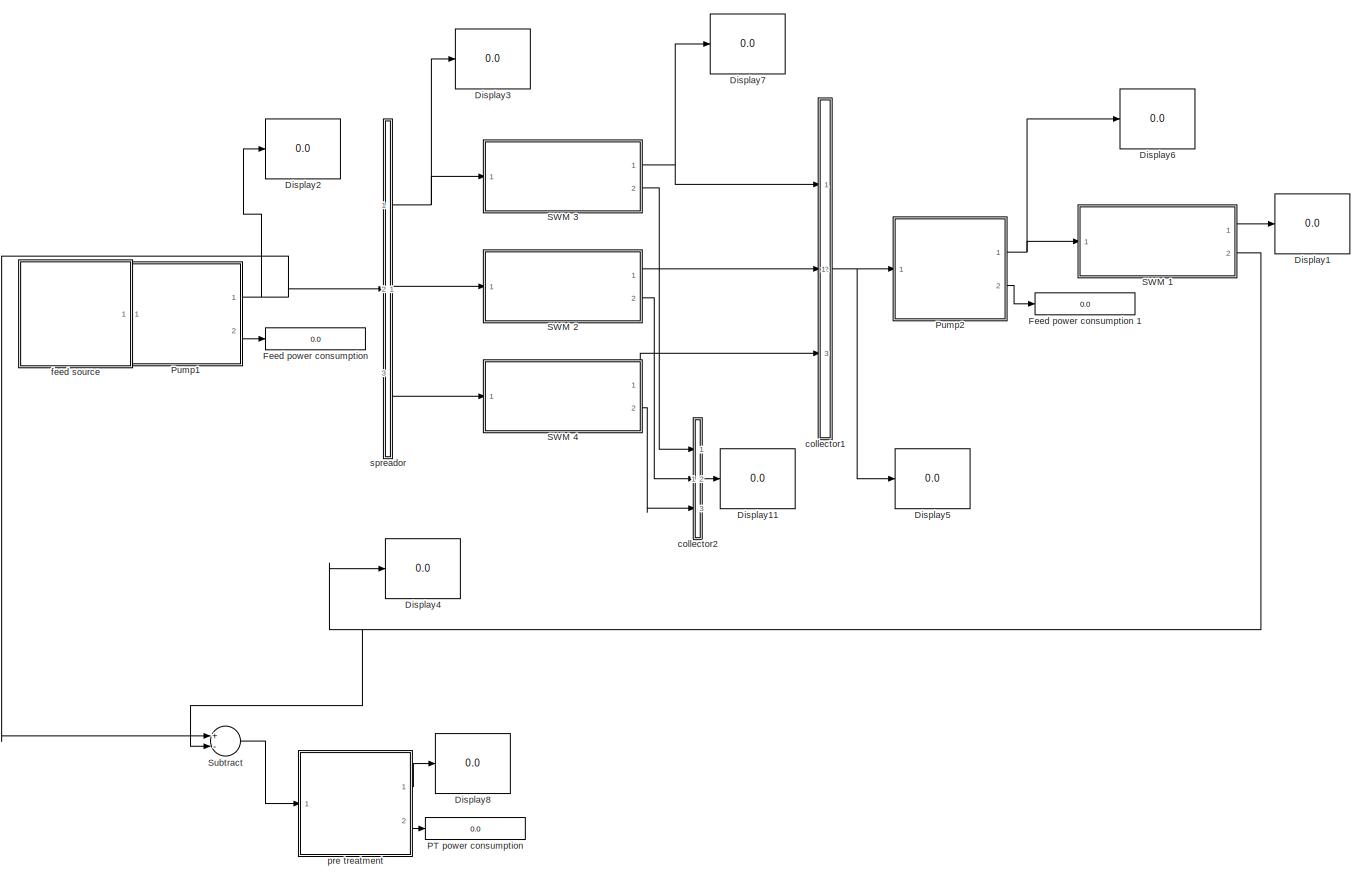
[diagram: root canvas - part 1/1, most of the canvas]
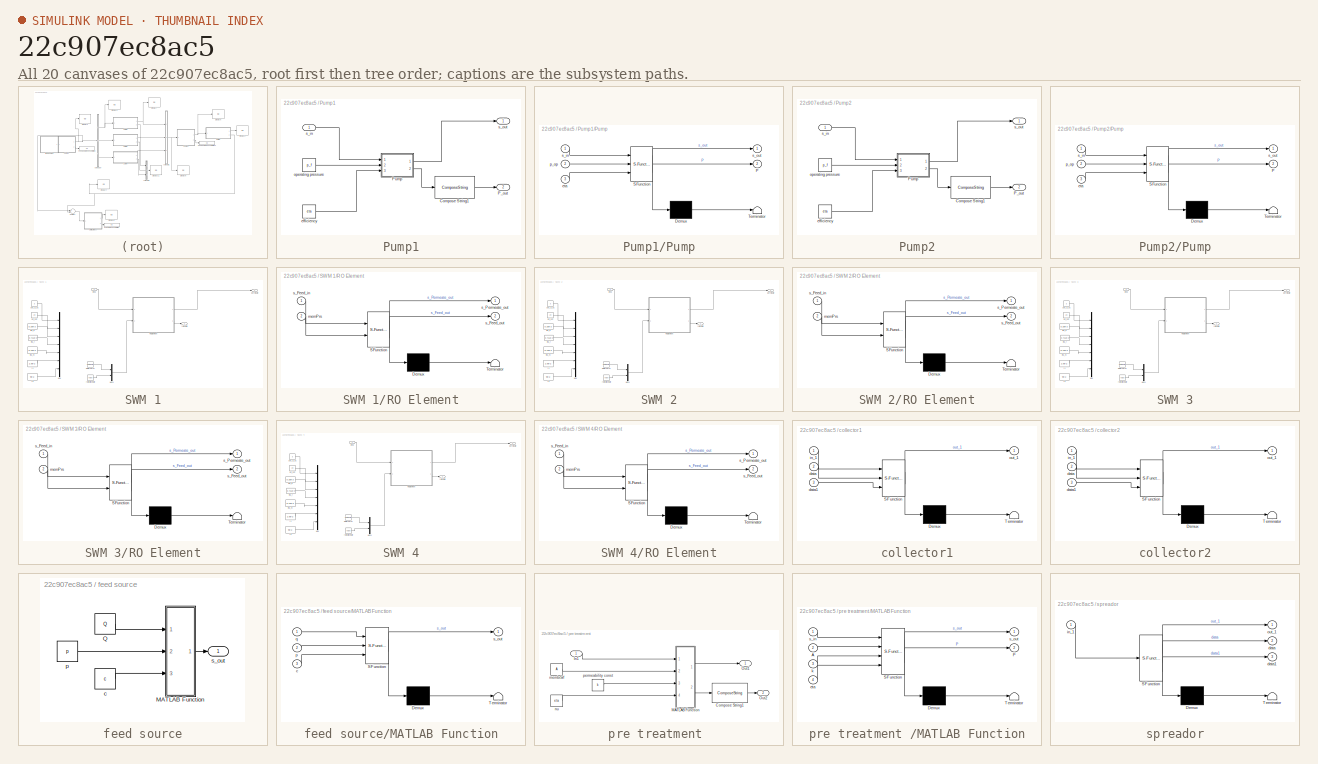
[diagram: thumbnail index - all 20 canvases of the model, root first then tree order]
MODEL slx_22c907ec8ac5
KIND model
CONFIG AbsTol = auto
CONFIG EnableMultiTasking = off
CONFIG FixedStep = auto
CONFIG MaxStep = auto
CONFIG MinStep = auto
CONFIG RelTol = 1e-3
CONFIG SampleTimeConstraint = Unconstrained
CONFIG Solver = VariableStepAuto
CONFIG SolverName = VariableStepAuto
CONFIG StartTime = 0.0
CONFIG StopTime = 10.0
BLOCK [Display] Display1
  Decimation = 1
  Ports = [1]
BLOCK [Display] Display11
  Decimation = 1
  Ports = [1]
BLOCK [Display] Display2
  Decimation = 1
  Ports = [1]
BLOCK [Display] Display3
  Decimation = 1
  Ports = [1]
BLOCK [Display] Display4
  Decimation = 1
  Ports = [1]
BLOCK [Display] Display5
  Decimation = 1
  Ports = [1]
BLOCK [Display] Display6
  Decimation = 1
  Ports = [1]
BLOCK [Display] Display7
  Decimation = 1
  Ports = [1]
BLOCK [Display] Display8
  Decimation = 1
  Ports = [1]
BLOCK [Display] Feed power consumption 
  Decimation = 1
  Ports = [1]
BLOCK [Display] Feed power consumption 1
  Decimation = 1
  Ports = [1]
BLOCK [Display] PT power consumption 
  Decimation = 1
  Ports = [1]
BLOCK [SubSystem] Pump1
  Ports = [1, 2]
  RequestExecContextInheritance = off
BLOCK [ComposeString] Pump1/Compose String1
  Format = 'P = %.3f kW'
  Ports = [1, 1]
BLOCK [Outport] Pump1/P_out
  IconDisplay = Port number
  Port = 2
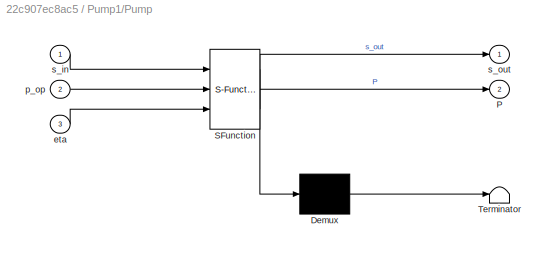
BLOCK [SubSystem] Pump1/Pump
  ErrorFcn = Stateflow.Translate.translate
  PermitHierarchicalResolution = ExplicitOnly
  Ports = [3, 2]
  RequestExecContextInheritance = off
  SFBlockType = MATLAB Function
  TreatAsAtomicUnit = on
BLOCK [Demux] Pump1/Pump/ Demux 
  Outputs = 1
  Ports = [1, 1]
BLOCK [S-Function] Pump1/Pump/ SFunction 
  EnableBusSupport = on
  FunctionName = sf_sfun
  PortCounts = [3 3]
  Ports = [3, 3]
  SFcnIsStateOwnerBlock = off
  SFunctionDeploymentMode = off
  Tag = Stateflow S-Function brine_3_1 3
BLOCK [Terminator] Pump1/Pump/ Terminator 
BLOCK [Outport] Pump1/Pump/P
  IconDisplay = Port number
  Port = 2
BLOCK [Inport] Pump1/Pump/eta
  IconDisplay = Port number
  Port = 3
BLOCK [Inport] Pump1/Pump/p_op
  IconDisplay = Port number
  Port = 2
BLOCK [Inport] Pump1/Pump/s_in
  IconDisplay = Port number
BLOCK [Outport] Pump1/Pump/s_out
  IconDisplay = Port number
BLOCK [Constant] Pump1/efficiency
  Value = eta
BLOCK [Constant] Pump1/operating pressure 
  Value = p_f
BLOCK [Inport] Pump1/s_in 
  IconDisplay = Port number
BLOCK [Outport] Pump1/s_out
  IconDisplay = Port number
BLOCK [SubSystem] Pump2
  Ports = [1, 2]
  RequestExecContextInheritance = off
BLOCK [ComposeString] Pump2/Compose String1
  Format = 'P = %.3f kW'
  Ports = [1, 1]
BLOCK [Outport] Pump2/P_out
  IconDisplay = Port number
  Port = 2
BLOCK [SubSystem] Pump2/Pump
  ErrorFcn = Stateflow.Translate.translate
  PermitHierarchicalResolution = ExplicitOnly
  Ports = [3, 2]
  RequestExecContextInheritance = off
  SFBlockType = MATLAB Function
  TreatAsAtomicUnit = on
BLOCK [Demux] Pump2/Pump/ Demux 
  Outputs = 1
  Ports = [1, 1]
BLOCK [S-Function] Pump2/Pump/ SFunction 
  EnableBusSupport = on
  FunctionName = sf_sfun
  PortCounts = [3 3]
  Ports = [3, 3]
  SFcnIsStateOwnerBlock = off
  SFunctionDeploymentMode = off
  Tag = Stateflow S-Function brine_3_1 2
BLOCK [Terminator] Pump2/Pump/ Terminator 
BLOCK [Outport] Pump2/Pump/P
  IconDisplay = Port number
  Port = 2
BLOCK [Inport] Pump2/Pump/eta
  IconDisplay = Port number
  Port = 3
BLOCK [Inport] Pump2/Pump/p_op
  IconDisplay = Port number
  Port = 2
BLOCK [Inport] Pump2/Pump/s_in
  IconDisplay = Port number
BLOCK [Outport] Pump2/Pump/s_out
  IconDisplay = Port number
BLOCK [Constant] Pump2/efficiency
  Value = eta
BLOCK [Constant] Pump2/operating pressure 
  Value = p_f
BLOCK [Inport] Pump2/s_in 
  IconDisplay = Port number
BLOCK [Outport] Pump2/s_out
  IconDisplay = Port number
BLOCK [SubSystem] SWM 1
  Ports = [1, 2]
  RequestExecContextInheritance = off
BLOCK [Mux] SWM 1/Mux
  Commented = on
  DisplayOption = bar
  Inputs = 7
  Ports = [7, 1]
BLOCK [Mux] SWM 1/Mux1
  DisplayOption = bar
  Inputs = 2
  Ports = [2, 1]
BLOCK [SubSystem] SWM 1/RO Element
  ErrorFcn = Stateflow.Translate.translate
  PermitHierarchicalResolution = ExplicitOnly
  Ports = [2, 2]
  RequestExecContextInheritance = off
  SFBlockType = MATLAB Function
  TreatAsAtomicUnit = on
BLOCK [Demux] SWM 1/RO Element/ Demux 
  Outputs = 1
  Ports = [1, 1]
BLOCK [S-Function] SWM 1/RO Element/ SFunction 
  EnableBusSupport = on
  FunctionName = sf_sfun
  PortCounts = [2 3]
  Ports = [2, 3]
  SFcnIsStateOwnerBlock = off
  SFunctionDeploymentMode = off
  Tag = Stateflow S-Function brine_3_1 1
BLOCK [Terminator] SWM 1/RO Element/ Terminator 
BLOCK [Inport] SWM 1/RO Element/memPrs
  IconDisplay = Port number
  Port = 2
BLOCK [Inport] SWM 1/RO Element/s_Feed_in
  IconDisplay = Port number
BLOCK [Outport] SWM 1/RO Element/s_Feed_out
  IconDisplay = Port number
  Port = 2
BLOCK [Outport] SWM 1/RO Element/s_Permeate_out
  IconDisplay = Port number
BLOCK [Inport] SWM 1/feed
  IconDisplay = Port number
BLOCK [Constant] SWM 1/np_sht
  Commented = on
  Value = 20
BLOCK [Outport] SWM 1/permeate
  IconDisplay = Port number
BLOCK [Constant] SWM 1/r1
  Commented = on
  Value = 2.5e-2
BLOCK [Constant] SWM 1/r2
  Commented = on
  Value = 9e-2
BLOCK [Constant] SWM 1/rejectionRate
  Value = Value
BLOCK [Outport] SWM 1/retentate
  IconDisplay = Port number
  Port = 2
BLOCK [Constant] SWM 1/spc_d_uc
  Commented = on
  Value = 3
BLOCK [Constant] SWM 1/thk_f
  Commented = on
  Value = 0.711e-3
BLOCK [Constant] SWM 1/thk_m
  Commented = on
  Value = 0.11e-3
BLOCK [Constant] SWM 1/thk_p
  Commented = on
  Value = 0.25e-3
BLOCK [Constant] SWM 1/waterPerm
  Value = waterPerm
BLOCK [SubSystem] SWM 2
  Ports = [1, 2]
  RequestExecContextInheritance = off
BLOCK [Mux] SWM 2/Mux
  Commented = on
  DisplayOption = bar
  Inputs = 7
  Ports = [7, 1]
BLOCK [Mux] SWM 2/Mux1
  DisplayOption = bar
  Inputs = 2
  Ports = [2, 1]
BLOCK [SubSystem] SWM 2/RO Element
  ErrorFcn = Stateflow.Translate.translate
  PermitHierarchicalResolution = ExplicitOnly
  Ports = [2, 2]
  RequestExecContextInheritance = off
  SFBlockType = MATLAB Function
  TreatAsAtomicUnit = on
BLOCK [Demux] SWM 2/RO Element/ Demux 
  Outputs = 1
  Ports = [1, 1]
BLOCK [S-Function] SWM 2/RO Element/ SFunction 
  EnableBusSupport = on
  FunctionName = sf_sfun
  PortCounts = [2 3]
  Ports = [2, 3]
  SFcnIsStateOwnerBlock = off
  SFunctionDeploymentMode = off
  Tag = Stateflow S-Function brine_3_1 8
BLOCK [Terminator] SWM 2/RO Element/ Terminator 
BLOCK [Inport] SWM 2/RO Element/memPrs
  IconDisplay = Port number
  Port = 2
BLOCK [Inport] SWM 2/RO Element/s_Feed_in
  IconDisplay = Port number
BLOCK [Outport] SWM 2/RO Element/s_Feed_out
  IconDisplay = Port number
  Port = 2
BLOCK [Outport] SWM 2/RO Element/s_Permeate_out
  IconDisplay = Port number
BLOCK [Inport] SWM 2/feed
  IconDisplay = Port number
BLOCK [Constant] SWM 2/np_sht
  Commented = on
  Value = 20
BLOCK [Outport] SWM 2/permeate
  IconDisplay = Port number
BLOCK [Constant] SWM 2/r1
  Commented = on
  Value = 2.5e-2
BLOCK [Constant] SWM 2/r2
  Commented = on
  Value = 9e-2
BLOCK [Constant] SWM 2/rejectionRate
  Value = Value
BLOCK [Outport] SWM 2/retentate
  IconDisplay = Port number
  Port = 2
BLOCK [Constant] SWM 2/spc_d_uc
  Commented = on
  Value = 3
BLOCK [Constant] SWM 2/thk_f
  Commented = on
  Value = 0.711e-3
BLOCK [Constant] SWM 2/thk_m
  Commented = on
  Value = 0.11e-3
BLOCK [Constant] SWM 2/thk_p
  Commented = on
  Value = 0.25e-3
BLOCK [Constant] SWM 2/waterPerm
  Value = waterPerm
BLOCK [SubSystem] SWM 3
  Ports = [1, 2]
  RequestExecContextInheritance = off
BLOCK [Mux] SWM 3/Mux
  Commented = on
  DisplayOption = bar
  Inputs = 7
  Ports = [7, 1]
BLOCK [Mux] SWM 3/Mux1
  DisplayOption = bar
  Inputs = 2
  Ports = [2, 1]
BLOCK [SubSystem] SWM 3/RO Element
  ErrorFcn = Stateflow.Translate.translate
  PermitHierarchicalResolution = ExplicitOnly
  Ports = [2, 2]
  RequestExecContextInheritance = off
  SFBlockType = MATLAB Function
  TreatAsAtomicUnit = on
BLOCK [Demux] SWM 3/RO Element/ Demux 
  Outputs = 1
  Ports = [1, 1]
BLOCK [S-Function] SWM 3/RO Element/ SFunction 
  EnableBusSupport = on
  FunctionName = sf_sfun
  PortCounts = [2 3]
  Ports = [2, 3]
  SFcnIsStateOwnerBlock = off
  SFunctionDeploymentMode = off
  Tag = Stateflow S-Function brine_3_1 4
BLOCK [Terminator] SWM 3/RO Element/ Terminator 
BLOCK [Inport] SWM 3/RO Element/memPrs
  IconDisplay = Port number
  Port = 2
BLOCK [Inport] SWM 3/RO Element/s_Feed_in
  IconDisplay = Port number
BLOCK [Outport] SWM 3/RO Element/s_Feed_out
  IconDisplay = Port number
  Port = 2
BLOCK [Outport] SWM 3/RO Element/s_Permeate_out
  IconDisplay = Port number
BLOCK [Inport] SWM 3/feed
  IconDisplay = Port number
BLOCK [Constant] SWM 3/np_sht
  Commented = on
  Value = 20
BLOCK [Outport] SWM 3/permeate
  IconDisplay = Port number
BLOCK [Constant] SWM 3/r1
  Commented = on
  Value = 2.5e-2
BLOCK [Constant] SWM 3/r2
  Commented = on
  Value = 9e-2
BLOCK [Constant] SWM 3/rejectionRate
  Value = Value
BLOCK [Outport] SWM 3/retentate
  IconDisplay = Port number
  Port = 2
BLOCK [Constant] SWM 3/spc_d_uc
  Commented = on
  Value = 3
BLOCK [Constant] SWM 3/thk_f
  Commented = on
  Value = 0.711e-3
BLOCK [Constant] SWM 3/thk_m
  Commented = on
  Value = 0.11e-3
BLOCK [Constant] SWM 3/thk_p
  Commented = on
  Value = 0.25e-3
BLOCK [Constant] SWM 3/waterPerm
  Value = waterPerm
BLOCK [SubSystem] SWM 4
  Ports = [1, 2]
  RequestExecContextInheritance = off
BLOCK [Mux] SWM 4/Mux
  Commented = on
  DisplayOption = bar
  Inputs = 7
  Ports = [7, 1]
BLOCK [Mux] SWM 4/Mux1
  DisplayOption = bar
  Inputs = 2
  Ports = [2, 1]
BLOCK [SubSystem] SWM 4/RO Element
  ErrorFcn = Stateflow.Translate.translate
  PermitHierarchicalResolution = ExplicitOnly
  Ports = [2, 2]
  RequestExecContextInheritance = off
  SFBlockType = MATLAB Function
  TreatAsAtomicUnit = on
BLOCK [Demux] SWM 4/RO Element/ Demux 
  Outputs = 1
  Ports = [1, 1]
BLOCK [S-Function] SWM 4/RO Element/ SFunction 
  EnableBusSupport = on
  FunctionName = sf_sfun
  PortCounts = [2 3]
  Ports = [2, 3]
  SFcnIsStateOwnerBlock = off
  SFunctionDeploymentMode = off
  Tag = Stateflow S-Function brine_3_1 9
BLOCK [Terminator] SWM 4/RO Element/ Terminator 
BLOCK [Inport] SWM 4/RO Element/memPrs
  IconDisplay = Port number
  Port = 2
BLOCK [Inport] SWM 4/RO Element/s_Feed_in
  IconDisplay = Port number
BLOCK [Outport] SWM 4/RO Element/s_Feed_out
  IconDisplay = Port number
  Port = 2
BLOCK [Outport] SWM 4/RO Element/s_Permeate_out
  IconDisplay = Port number
BLOCK [Inport] SWM 4/feed
  IconDisplay = Port number
BLOCK [Constant] SWM 4/np_sht
  Commented = on
  Value = 20
BLOCK [Outport] SWM 4/permeate
  IconDisplay = Port number
BLOCK [Constant] SWM 4/r1
  Commented = on
  Value = 2.5e-2
BLOCK [Constant] SWM 4/r2
  Commented = on
  Value = 9e-2
BLOCK [Constant] SWM 4/rejectionRate
  Value = Value
BLOCK [Outport] SWM 4/retentate
  IconDisplay = Port number
  Port = 2
BLOCK [Constant] SWM 4/spc_d_uc
  Commented = on
  Value = 3
BLOCK [Constant] SWM 4/thk_f
  Commented = on
  Value = 0.711e-3
BLOCK [Constant] SWM 4/thk_m
  Commented = on
  Value = 0.11e-3
BLOCK [Constant] SWM 4/thk_p
  Commented = on
  Value = 0.25e-3
BLOCK [Constant] SWM 4/waterPerm
  Value = waterPerm
BLOCK [Sum] Subtract
  InputSameDT = off
  Inputs = +-
  OutDataTypeStr = Inherit: Inherit via internal rule
  Ports = [2, 1]
  SaturateOnIntegerOverflow = off
BLOCK [SubSystem] collector1
  ErrorFcn = Stateflow.Translate.translate
  PermitHierarchicalResolution = ExplicitOnly
  Ports = [3, 1]
  RequestExecContextInheritance = off
  SFBlockType = MATLAB Function
  TreatAsAtomicUnit = on
BLOCK [Demux] collector1/ Demux 
  Outputs = 1
  Ports = [1, 1]
BLOCK [S-Function] collector1/ SFunction 
  EnableBusSupport = on
  FunctionName = sf_sfun
  PortCounts = [3 2]
  Ports = [3, 2]
  SFcnIsStateOwnerBlock = off
  SFunctionDeploymentMode = off
  Tag = Stateflow S-Function brine_3_1 10
BLOCK [Terminator] collector1/ Terminator 
BLOCK [Inport] collector1/data
  IconDisplay = Port number
  Port = 2
BLOCK [Inport] collector1/data1
  IconDisplay = Port number
  Port = 3
BLOCK [Inport] collector1/in_1
  IconDisplay = Port number
BLOCK [Outport] collector1/out_1
  IconDisplay = Port number
BLOCK [SubSystem] collector2
  ErrorFcn = Stateflow.Translate.translate
  PermitHierarchicalResolution = ExplicitOnly
  Ports = [3, 1]
  RequestExecContextInheritance = off
  SFBlockType = MATLAB Function
  TreatAsAtomicUnit = on
BLOCK [Demux] collector2/ Demux 
  Outputs = 1
  Ports = [1, 1]
BLOCK [S-Function] collector2/ SFunction 
  EnableBusSupport = on
  FunctionName = sf_sfun
  PortCounts = [3 2]
  Ports = [3, 2]
  SFcnIsStateOwnerBlock = off
  SFunctionDeploymentMode = off
  Tag = Stateflow S-Function brine_3_1 11
BLOCK [Terminator] collector2/ Terminator 
BLOCK [Inport] collector2/data
  IconDisplay = Port number
  Port = 2
BLOCK [Inport] collector2/data1
  IconDisplay = Port number
  Port = 3
BLOCK [Inport] collector2/in_1
  IconDisplay = Port number
BLOCK [Outport] collector2/out_1
  IconDisplay = Port number
BLOCK [SubSystem] feed source
  Ports = [0, 1]
  RequestExecContextInheritance = off
BLOCK [SubSystem] feed source/MATLAB Function
  ErrorFcn = Stateflow.Translate.translate
  PermitHierarchicalResolution = ExplicitOnly
  Ports = [3, 1]
  RequestExecContextInheritance = off
  SFBlockType = MATLAB Function
  TreatAsAtomicUnit = on
BLOCK [Demux] feed source/MATLAB Function/ Demux 
  Outputs = 1
  Ports = [1, 1]
BLOCK [S-Function] feed source/MATLAB Function/ SFunction 
  EnableBusSupport = on
  FunctionName = sf_sfun
  PortCounts = [3 2]
  Ports = [3, 2]
  SFcnIsStateOwnerBlock = off
  SFunctionDeploymentMode = off
  Tag = Stateflow S-Function brine_3_1 19
BLOCK [Terminator] feed source/MATLAB Function/ Terminator 
BLOCK [Inport] feed source/MATLAB Function/c
  IconDisplay = Port number
  Port = 3
BLOCK [Inport] feed source/MATLAB Function/p
  IconDisplay = Port number
  Port = 2
BLOCK [Inport] feed source/MATLAB Function/q
  IconDisplay = Port number
BLOCK [Outport] feed source/MATLAB Function/s_out
  IconDisplay = Port number
BLOCK [Constant] feed source/Q
  Value = Q
BLOCK [Constant] feed source/c
  Value = c
BLOCK [Constant] feed source/p
  Value = p
BLOCK [Outport] feed source/s_out
  IconDisplay = Port number
BLOCK [SubSystem] pre treatment 
  Ports = [1, 2]
  RequestExecContextInheritance = off
BLOCK [ComposeString] pre treatment /Compose String1
  Format = 'P = %.3f kW'
  Ports = [1, 1]
BLOCK [Inport] pre treatment /In1
  IconDisplay = Port number
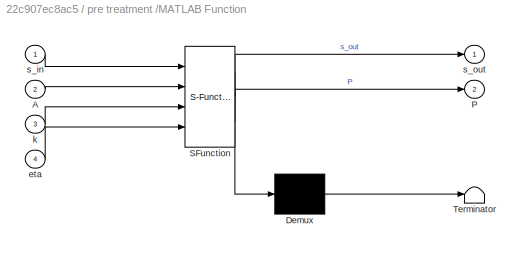
BLOCK [SubSystem] pre treatment /MATLAB Function
  ErrorFcn = Stateflow.Translate.translate
  PermitHierarchicalResolution = ExplicitOnly
  Ports = [4, 2]
  RequestExecContextInheritance = off
  SFBlockType = MATLAB Function
  TreatAsAtomicUnit = on
BLOCK [Demux] pre treatment /MATLAB Function/ Demux 
  Outputs = 1
  Ports = [1, 1]
BLOCK [S-Function] pre treatment /MATLAB Function/ SFunction 
  EnableBusSupport = on
  FunctionName = sf_sfun
  PortCounts = [4 3]
  Ports = [4, 3]
  SFcnIsStateOwnerBlock = off
  SFunctionDeploymentMode = off
  Tag = Stateflow S-Function brine_3_1 20
BLOCK [Terminator] pre treatment /MATLAB Function/ Terminator 
BLOCK [Inport] pre treatment /MATLAB Function/A
  IconDisplay = Port number
  Port = 2
BLOCK [Outport] pre treatment /MATLAB Function/P
  IconDisplay = Port number
  Port = 2
BLOCK [Inport] pre treatment /MATLAB Function/eta
  IconDisplay = Port number
  Port = 4
BLOCK [Inport] pre treatment /MATLAB Function/k
  IconDisplay = Port number
  Port = 3
BLOCK [Inport] pre treatment /MATLAB Function/s_in
  IconDisplay = Port number
BLOCK [Outport] pre treatment /MATLAB Function/s_out
  IconDisplay = Port number
BLOCK [Outport] pre treatment /Out1
  IconDisplay = Port number
BLOCK [Outport] pre treatment /Out2
  IconDisplay = Port number
  Port = 2
BLOCK [Constant] pre treatment /membrSrf
  Value = A
BLOCK [Constant] pre treatment /nu
  Value = eta
BLOCK [Constant] pre treatment /permeability const
  Value = k
BLOCK [SubSystem] spreador
  ErrorFcn = Stateflow.Translate.translate
  PermitHierarchicalResolution = ExplicitOnly
  Ports = [1, 3]
  RequestExecContextInheritance = off
  SFBlockType = MATLAB Function
  TreatAsAtomicUnit = on
BLOCK [Demux] spreador/ Demux 
  Outputs = 1
  Ports = [1, 1]
BLOCK [S-Function] spreador/ SFunction 
  EnableBusSupport = on
  FunctionName = sf_sfun
  PortCounts = [1 4]
  Ports = [1, 4]
  SFcnIsStateOwnerBlock = off
  SFunctionDeploymentMode = off
  Tag = Stateflow S-Function brine_3_1 23
BLOCK [Terminator] spreador/ Terminator 
BLOCK [Outport] spreador/data
  IconDisplay = Port number
  Port = 2
BLOCK [Outport] spreador/data1
  IconDisplay = Port number
  Port = 3
BLOCK [Inport] spreador/in_1
  IconDisplay = Port number
BLOCK [Outport] spreador/out_1
  IconDisplay = Port number
LINE Pump1/Compose String1:1 -> Pump1/P_out:1
LINE Pump1/Pump:1 -> Pump1/s_out:1
LINE Pump1/Pump:2 -> Pump1/Compose String1:1
LINE Pump1/efficiency:1 -> Pump1/Pump:3
LINE Pump1/operating pressure :1 -> Pump1/Pump:2
LINE Pump1/s_in :1 -> Pump1/Pump:1
NET Pump1:1 -> Display2:1, Subtract:1, spreador:1
LINE Pump1:2 -> Feed power consumption :1
LINE Pump2/Compose String1:1 -> Pump2/P_out:1
LINE Pump2/Pump:1 -> Pump2/s_out:1
LINE Pump2/Pump:2 -> Pump2/Compose String1:1
LINE Pump2/efficiency:1 -> Pump2/Pump:3
LINE Pump2/operating pressure :1 -> Pump2/Pump:2
LINE Pump2/s_in :1 -> Pump2/Pump:1
NET Pump2:1 -> Display6:1, SWM 1:1
LINE Pump2:2 -> Feed power consumption 1:1
LINE SWM 1/Mux1:1 -> SWM 1/RO Element:2
LINE SWM 1/RO Element:1 -> SWM 1/permeate:1
LINE SWM 1/RO Element:2 -> SWM 1/retentate:1
LINE SWM 1/feed:1 -> SWM 1/RO Element:1
LINE SWM 1/np_sht:1 -> SWM 1/Mux:2
LINE SWM 1/r1:1 -> SWM 1/Mux:6
LINE SWM 1/r2:1 -> SWM 1/Mux:7
LINE SWM 1/rejectionRate:1 -> SWM 1/Mux1:2
LINE SWM 1/spc_d_uc:1 -> SWM 1/Mux:1
LINE SWM 1/thk_f:1 -> SWM 1/Mux:4
LINE SWM 1/thk_m:1 -> SWM 1/Mux:5
LINE SWM 1/thk_p:1 -> SWM 1/Mux:3
LINE SWM 1/waterPerm:1 -> SWM 1/Mux1:1
LINE SWM 1:1 -> Display1:1
NET SWM 1:2 -> Display4:1, Subtract:2
LINE SWM 2/Mux1:1 -> SWM 2/RO Element:2
LINE SWM 2/RO Element:1 -> SWM 2/permeate:1
LINE SWM 2/RO Element:2 -> SWM 2/retentate:1
LINE SWM 2/feed:1 -> SWM 2/RO Element:1
LINE SWM 2/np_sht:1 -> SWM 2/Mux:2
LINE SWM 2/r1:1 -> SWM 2/Mux:6
LINE SWM 2/r2:1 -> SWM 2/Mux:7
LINE SWM 2/rejectionRate:1 -> SWM 2/Mux1:2
LINE SWM 2/spc_d_uc:1 -> SWM 2/Mux:1
LINE SWM 2/thk_f:1 -> SWM 2/Mux:4
LINE SWM 2/thk_m:1 -> SWM 2/Mux:5
LINE SWM 2/thk_p:1 -> SWM 2/Mux:3
LINE SWM 2/waterPerm:1 -> SWM 2/Mux1:1
LINE SWM 2:1 -> collector1:2
LINE SWM 2:2 -> collector2:2
LINE SWM 3/Mux1:1 -> SWM 3/RO Element:2
LINE SWM 3/RO Element:1 -> SWM 3/permeate:1
LINE SWM 3/RO Element:2 -> SWM 3/retentate:1
LINE SWM 3/feed:1 -> SWM 3/RO Element:1
LINE SWM 3/np_sht:1 -> SWM 3/Mux:2
LINE SWM 3/r1:1 -> SWM 3/Mux:6
LINE SWM 3/r2:1 -> SWM 3/Mux:7
LINE SWM 3/rejectionRate:1 -> SWM 3/Mux1:2
LINE SWM 3/spc_d_uc:1 -> SWM 3/Mux:1
LINE SWM 3/thk_f:1 -> SWM 3/Mux:4
LINE SWM 3/thk_m:1 -> SWM 3/Mux:5
LINE SWM 3/thk_p:1 -> SWM 3/Mux:3
LINE SWM 3/waterPerm:1 -> SWM 3/Mux1:1
NET SWM 3:1 -> Display7:1, collector1:1
LINE SWM 3:2 -> collector2:1
LINE SWM 4/Mux1:1 -> SWM 4/RO Element:2
LINE SWM 4/RO Element:1 -> SWM 4/permeate:1
LINE SWM 4/RO Element:2 -> SWM 4/retentate:1
LINE SWM 4/feed:1 -> SWM 4/RO Element:1
LINE SWM 4/np_sht:1 -> SWM 4/Mux:2
LINE SWM 4/r1:1 -> SWM 4/Mux:6
LINE SWM 4/r2:1 -> SWM 4/Mux:7
LINE SWM 4/rejectionRate:1 -> SWM 4/Mux1:2
LINE SWM 4/spc_d_uc:1 -> SWM 4/Mux:1
LINE SWM 4/thk_f:1 -> SWM 4/Mux:4
LINE SWM 4/thk_m:1 -> SWM 4/Mux:5
LINE SWM 4/thk_p:1 -> SWM 4/Mux:3
LINE SWM 4/waterPerm:1 -> SWM 4/Mux1:1
LINE SWM 4:1 -> collector1:3
LINE SWM 4:2 -> collector2:3
LINE Subtract:1 -> pre treatment :1
NET collector1:1 -> Display5:1, Pump2:1
LINE collector2:1 -> Display11:1
LINE feed source/MATLAB Function:1 -> feed source/s_out:1
LINE feed source/Q:1 -> feed source/MATLAB Function:1
LINE feed source/c:1 -> feed source/MATLAB Function:3
LINE feed source/p:1 -> feed source/MATLAB Function:2
LINE feed source:1 -> Pump1:1
LINE pre treatment /Compose String1:1 -> pre treatment /Out2:1
LINE pre treatment /In1:1 -> pre treatment /MATLAB Function:1
LINE pre treatment /MATLAB Function:1 -> pre treatment /Out1:1
LINE pre treatment /MATLAB Function:2 -> pre treatment /Compose String1:1
LINE pre treatment /membrSrf:1 -> pre treatment /MATLAB Function:2
LINE pre treatment /nu:1 -> pre treatment /MATLAB Function:4
LINE pre treatment /permeability const:1 -> pre treatment /MATLAB Function:3
LINE pre treatment :1 -> Display8:1
LINE pre treatment :2 -> PT power consumption :1
NET spreador:1 -> Display3:1, SWM 3:1
LINE spreador:2 -> SWM 2:1
LINE spreador:3 -> SWM 4:1
note: NET lines group one-source signal fan-out (src -> all destinations, sorted); 1:1 wires keep LINE
CHART SWM 1/RO Element states=1 transitions=1
  STATE_LABEL 'eML_blk_kernel()'
  STATE_LABEL 'SCRIPT:\nfunction [s_Permeate_out, s_Feed_out] = fcn(s_Feed_in, memPrs)\n\n% moduleParas = [d_uc, no_sht, thk_d, thk_f, thk_m, r1, r2]\n\nr_fl    = 2.5e-4;\nh_ch    = 7.11e-4;\nl_f     = 2.822e-3;\neps     = 1.0 - (3.14*r_fl^2*2.0)/(l_f*h_ch);\n\n% ---------------------------------fixing flow rate:\nnbSheets = 20;\nl_s     = 1.1;\nl_l     = 0.93;\n\nq_in    = s_Feed_in(1)/3.6*1e-6;        %m^3/s\nU       = q_in/(...<+2296ch>'  <repeated x4 — deduplicated; at blocks: RO Element>
CHART Pump2/Pump states=1 transitions=1
  STATE_LABEL 'eML_blk_kernel()'
  STATE_LABEL 'SCRIPT:\nfunction [s_out,P ] = fcn(s_in, p_op, eta)\nq = s_in(1);\ndp = p_op - s_in(2);\nP = q*dp/eta/3.6e4;     % power consumption in kW\ns_out = [q,p_op,s_in(3)];\n\n'
CHART Pump1/Pump states=1 transitions=1
  STATE_LABEL 'eML_blk_kernel()'
  STATE_LABEL 'SCRIPT:\nfunction [s_out,P ] = fcn(s_in, p_op, eta)\nq = s_in(1);\ndp = p_op - s_in(2);\nP = q*dp/eta/3.6e4;     % power consumption in kW\ns_out = [q,p_op,s_in(3)];\n\n'
CHART SWM 3/RO Element states=1 transitions=1
  STATE_LABEL 'eML_blk_kernel()'
CHART SWM 2/RO Element states=1 transitions=1
  STATE_LABEL 'eML_blk_kernel()'
CHART SWM 4/RO Element states=1 transitions=1
  STATE_LABEL 'eML_blk_kernel()'
CHART collector1 states=1 transitions=1
  STATE_LABEL 'eML_blk_kernel()'
  STATE_LABEL 'SCRIPT:\nfunction out_1  = fork(in_1, data, data1)\n% reducing all input streams to one stream\n\nswitch nargin\n    case 1\n        sInAr = in_1;\n    case 2\n        sInAr = [data; in_1];\n    case 3\n        sInAr = [data; data1; in_1];\n    case 4\n        sInAr = [data; data1; data2; in_1];\n    case 5\n        sInAr = [data; data1; data2; data3; in_1];\n    case 6\n        sInAr = [data; data1; data2; data3...<+670ch>'
CHART collector2 states=1 transitions=1
  STATE_LABEL 'eML_blk_kernel()'
  STATE_LABEL 'SCRIPT:\nfunction out_1  = fork(in_1, data, data1)\n% reducing all input streams to one stream\n\nswitch nargin\n    case 1\n        sInAr = in_1;\n    case 2\n        sInAr = [data; in_1];\n    case 3\n        sInAr = [data; data1; in_1];\n    case 4\n        sInAr = [data; data1; data2; in_1];\n    case 5\n        sInAr = [data; data1; data2; data3; in_1];\n    case 6\n        sInAr = [data; data1; data2; data3...<+670ch>'
CHART feed source/MATLAB Function states=1 transitions=1
  STATE_LABEL 'eML_blk_kernel()'
  STATE_LABEL 'SCRIPT:\nfunction s_out = fcn(q,p,c)\ns_out = [q,p,c];\n'
CHART pre treatment
/MATLAB Function states=1 transitions=1
  STATE_LABEL 'eML_blk_kernel()'
  STATE_LABEL 'SCRIPT:\nfunction [s_out,P ] = pt(s_in, A, k, eta)\nq = s_in(1)*1e-6/3.6; % m^3/s\ndp = q/(k/(8.64e9)*A);  % Pa\nP = q*dp*1e-3/eta;     % power consumption in kW\ns_out = s_in;'
CHART spreador states=1 transitions=1
  STATE_LABEL 'eML_blk_kernel()'
  STATE_LABEL 'SCRIPT:\nfunction [out_1, data, data1] = fork(in_1)\n% spreading one input stream to several output streams\n\nswitch nargout\n    case 1\n        out_1 = in_1;\n    case 2\n        out_1 = [in_1(1)/nargout, in_1(2), in_1(3)];\n        data  = out_1;\n    case 3\n        out_1 = [in_1(1)/nargout, in_1(2), in_1(3)];\n        data  = out_1;\n        data1  = out_1;\n    case 4\n        out_1 = [in_1(1)/nargout, in...<+1458ch>'
